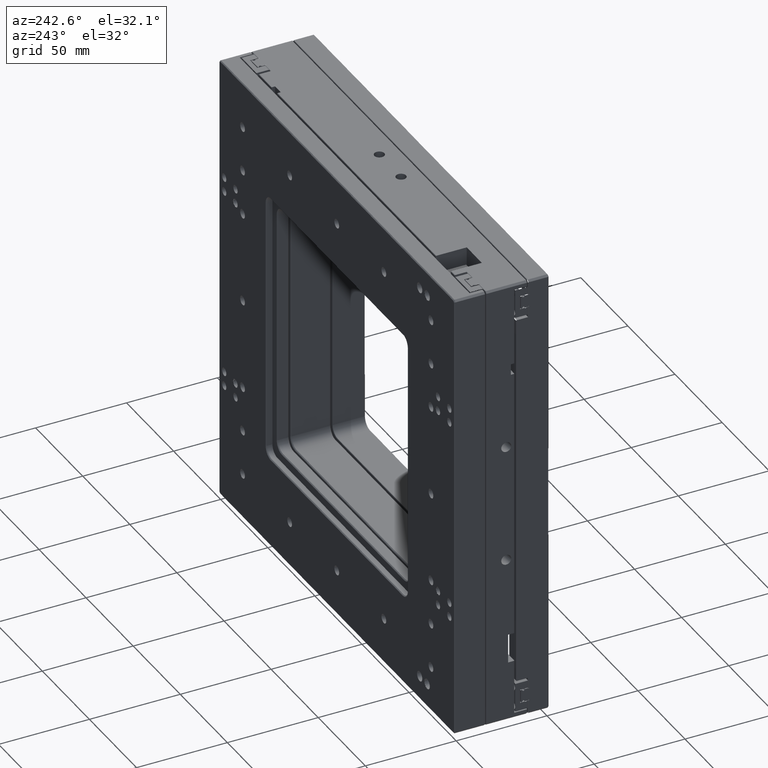
[diagram: clean part render]
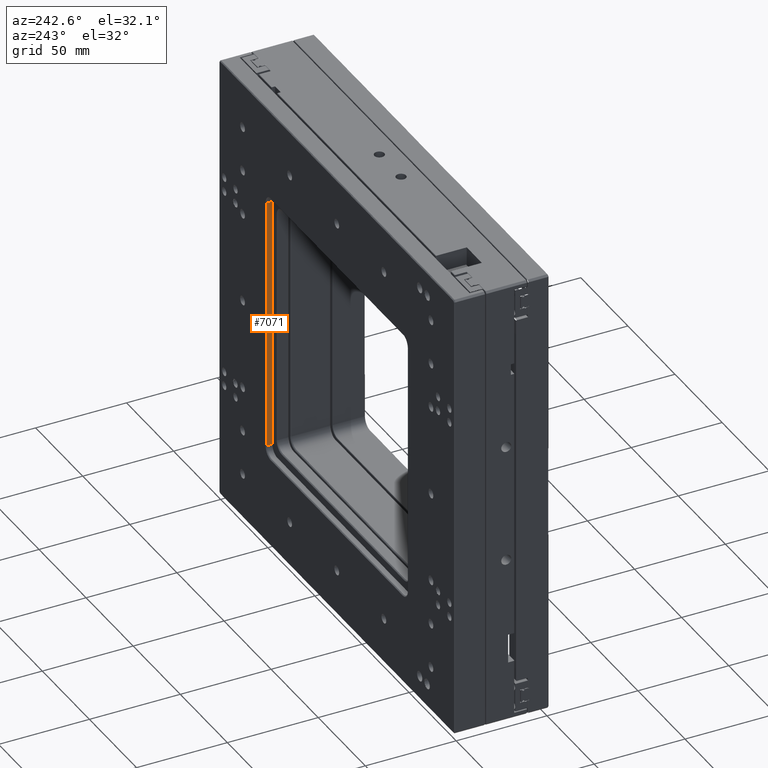
[diagram: same view with one face highlighted and labeled with its STEP entity id]
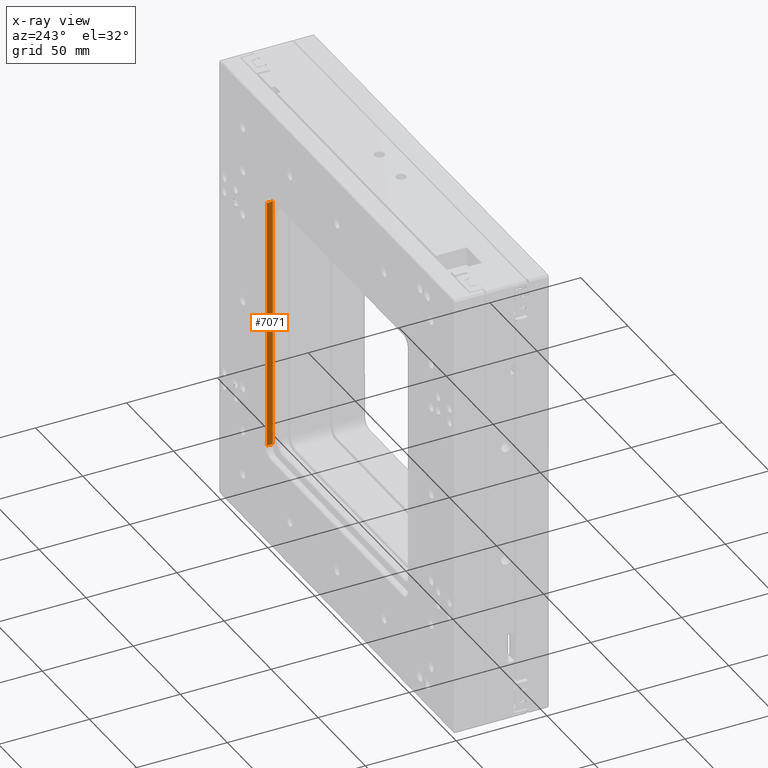
[diagram: x-ray of the same camera — body ghosted, the highlighted face saturated]
A machine part, auxiliary view. The second image highlights one B-rep face of the part: STEP entity #7071.
The next image is the same camera in x-ray: the body ghosted, the highlighted face saturated — about 0% of this face is hidden behind the body in this view.
In plain terms, the highlighted planar face has unit normal (1, 0, 0).
Its self-contained STEP definition (entity closure, byte-faithful):
#607 = CARTESIAN_POINT ( 'NONE',  ( -102.0477721377209700, 51.50000000000002800, 54.99999999999986500 ) ) ;
#773 = EDGE_CURVE ( 'NONE', #13311, #11095, #5294, .T. ) ;
#864 = ORIENTED_EDGE ( 'NONE', *, *, #15746, .T. ) ;
#902 = VERTEX_POINT ( 'NONE', #4805 ) ;
#1515 = VECTOR ( 'NONE', #21238, 1000.000000000000000 ) ;
#2025 = ORIENTED_EDGE ( 'NONE', *, *, #773, .T. ) ;
#2640 = VERTEX_POINT ( 'NONE', #14593 ) ;
#4004 = CARTESIAN_POINT ( 'NONE',  ( -102.0477721377214500, 52.00000000000004300, 194.9999999999998300 ) ) ;
#4805 = CARTESIAN_POINT ( 'NONE',  ( -102.0477721377209700, 51.50000000000002800, 54.99999999999986500 ) ) ;
#5294 = LINE ( 'NONE', #4004, #13849 ) ;
#5520 = CARTESIAN_POINT ( 'NONE',  ( -102.0477721377214500, 48.50000000000004300, 194.9999999999998300 ) ) ;
#6443 = VECTOR ( 'NONE', #6484, 1000.000000000000000 ) ;
#6484 = DIRECTION ( 'NONE',  ( 3.469446951953614200E-015, -7.182434939466754200E-017, -1.000000000000000000 ) ) ;
#7071 = ADVANCED_FACE ( 'NONE', ( #22887 ), #8129, .F. ) ;
#8018 = ORIENTED_EDGE ( 'NONE', *, *, #22390, .F. ) ;
#8129 = PLANE ( 'NONE',  #19196 ) ;
#9444 = CARTESIAN_POINT ( 'NONE',  ( -102.0477721377214500, 51.50000000000004300, 194.9999999999998300 ) ) ;
#9973 = CARTESIAN_POINT ( 'NONE',  ( -102.0477721377214700, 48.50000000000004300, 199.9999999999998600 ) ) ;
#11095 = VERTEX_POINT ( 'NONE', #9444 ) ;
#11581 = VECTOR ( 'NONE', #19101, 1000.000000000000000 ) ;
#11802 = CARTESIAN_POINT ( 'NONE',  ( -102.0477721377214700, 48.50000000000004300, 199.9999999999998600 ) ) ;
#11883 = DIRECTION ( 'NONE',  ( -1.990750518977365900E-023, 1.000000000000000000, -7.182434939466754200E-017 ) ) ;
#12672 = EDGE_LOOP ( 'NONE', ( #2025, #22925, #864, #8018 ) ) ;
#13311 = VERTEX_POINT ( 'NONE', #5520 ) ;
#13849 = VECTOR ( 'NONE', #11883, 1000.000000000000000 ) ;
#14593 = CARTESIAN_POINT ( 'NONE',  ( -102.0477721377209700, 48.50000000000003600, 54.99999999999986500 ) ) ;
#15675 = DIRECTION ( 'NONE',  ( 1.000000000000000000, 1.990750543896442900E-023, 3.469446951953614200E-015 ) ) ;
#15746 = EDGE_CURVE ( 'NONE', #902, #2640, #19952, .T. ) ;
#17338 = LINE ( 'NONE', #607, #11581 ) ;
#18760 = LINE ( 'NONE', #11802, #6443 ) ;
#19101 = DIRECTION ( 'NONE',  ( 3.469446951953614200E-015, -7.182434939466754200E-017, -1.000000000000000000 ) ) ;
#19196 = AXIS2_PLACEMENT_3D ( 'NONE', #9973, #15675, #22939 ) ;
#19381 = CARTESIAN_POINT ( 'NONE',  ( -102.0477721377209700, 48.50000000000003600, 54.99999999999986500 ) ) ;
#19952 = LINE ( 'NONE', #19381, #1515 ) ;
#21238 = DIRECTION ( 'NONE',  ( 1.990750518977365900E-023, -1.000000000000000000, 7.182434939466754200E-017 ) ) ;
#21797 = EDGE_CURVE ( 'NONE', #11095, #902, #17338, .T. ) ;
#22390 = EDGE_CURVE ( 'NONE', #13311, #2640, #18760, .T. ) ;
#22887 = FACE_OUTER_BOUND ( 'NONE', #12672, .T. ) ;
#22925 = ORIENTED_EDGE ( 'NONE', *, *, #21797, .T. ) ;
#22939 = DIRECTION ( 'NONE',  ( 1.990750518977365900E-023, -1.000000000000000000, 7.182434939466754200E-017 ) ) ;